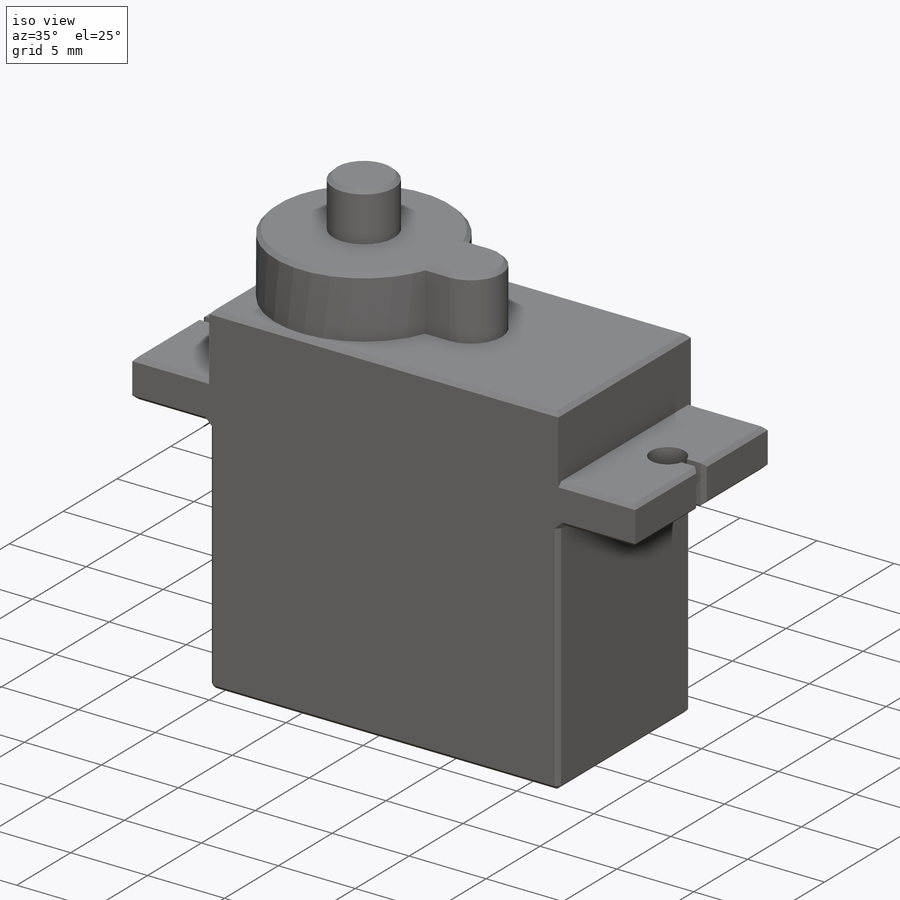
[diagram: iso view]
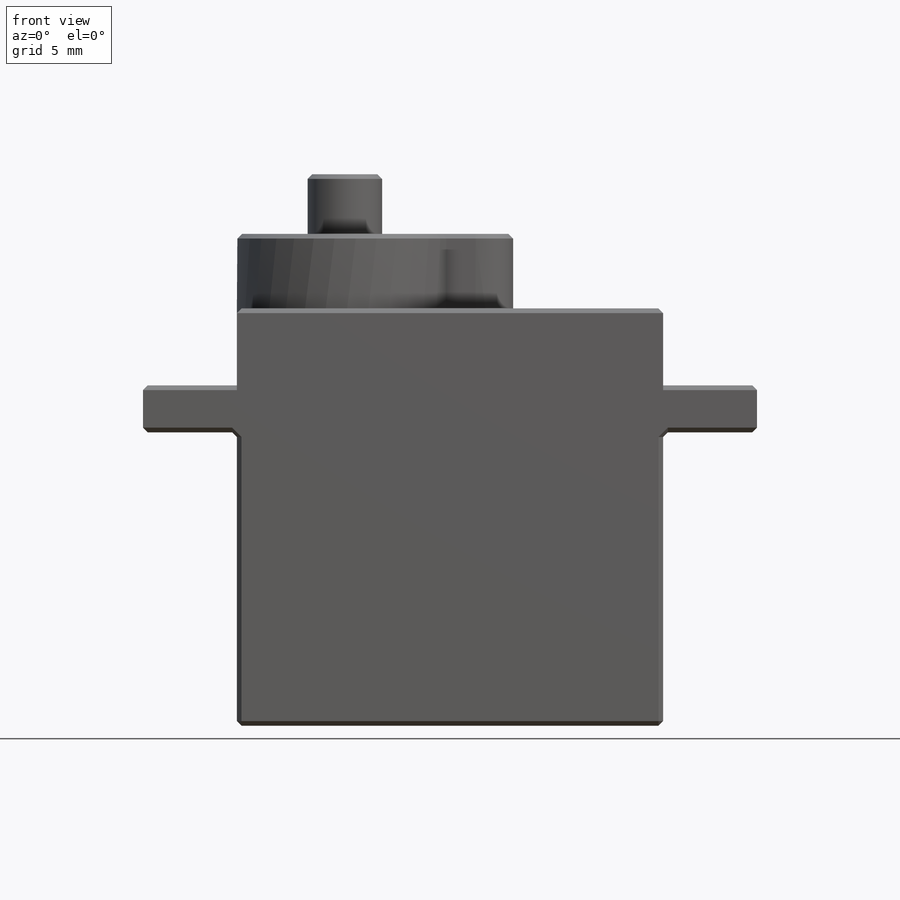
[diagram: front view]
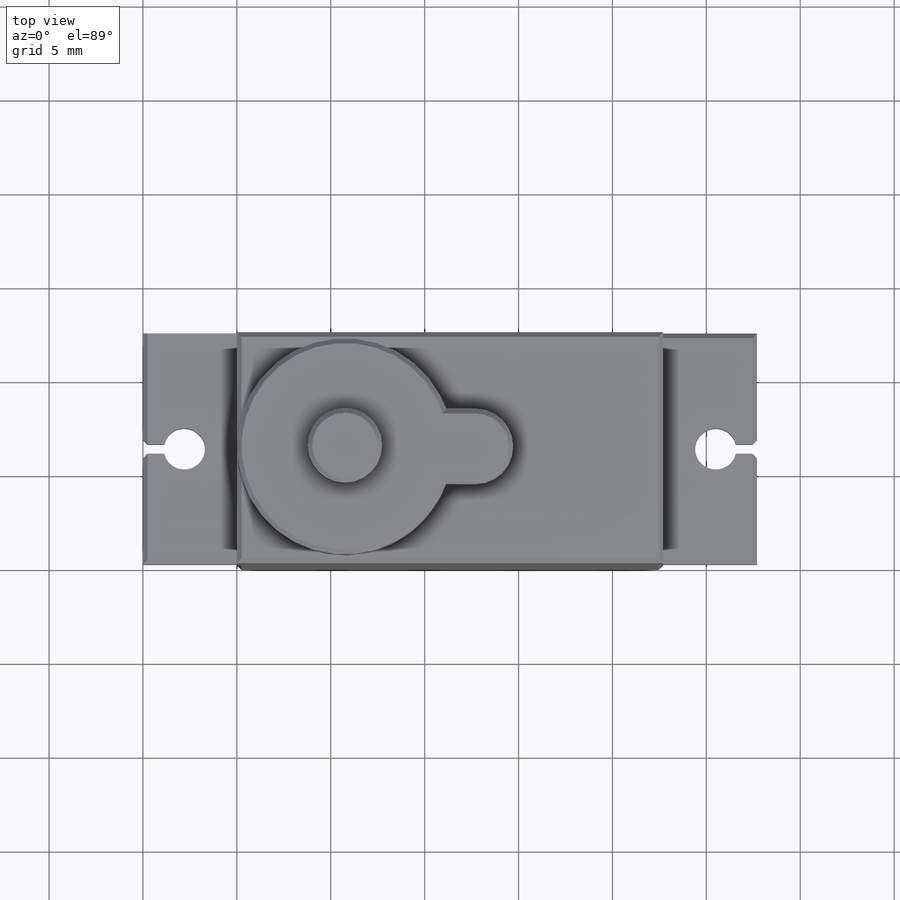
[diagram: top view]
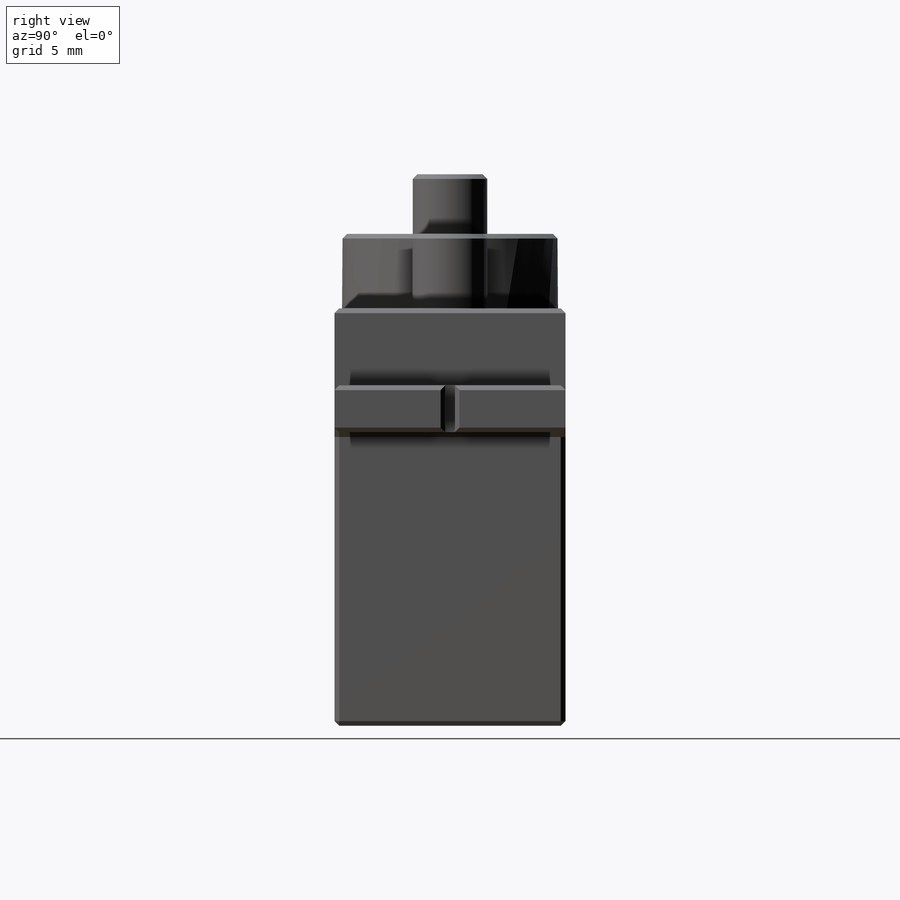
[diagram: right view]
SOLIDWORKS PART (.sldprt)
format: sldprt  version: not decoded by parser v0  size: 315,904 bytes
history: native  units: mm
features: sketch x5, extrude x4, chamfer x2, material x1, plane x1, cut_extrude x1, mirror x1 (+13 scaffold rows collapsed)
feature tree (28):
  scaffold x13  (default folders/planes/origin — collapsed)
  material  "Material <not specified>"
  sketch  "Sketch1"  dims[c1.D1=12.5mm c1.D2=22.4mm c2.D1=12.3mm c2.D2=22.7mm]
  extrude  "Boss-Extrude1"  Depth=22.225mm
  plane  "Plane1"
  sketch  "Sketch3"  dims[c1.D1=3.0mm c1.D2=12.5mm c2.D1=2.5mm c2.D2=6.6mm]
  extrude  "Boss-Extrude2"  Depth=5mm
  sketch  "Sketch4"  dims[D1=2.2mm D2=0.25mm D3=0.25mm D4=2.2mm]
  cut_extrude  "Cut-Extrude1"  [1 undecoded]
  mirror  "Mirror1"
  sketch  "Sketch5"  dims[c1.D1=~8.690002mm c1.D2=11.5mm c2.D1=5.556mm c2.D3=2.0mm c2.D4=2.0mm c2.D5=3.571mm c2.D6=3.571mm c2.D7=~4.178252mm]
  extrude  "Boss-Extrude3"  Depth=3.968mm
  sketch  "Sketch6"  dims[D1=3.968mm]
  extrude  "Boss-Extrude4"  Depth=3.175mm
  chamfer  "Chamfer1"  Distance=0.25mm Angle=45deg
  chamfer  "Chamfer2"  Distance=0.25mm Angle=45deg
decode coverage: 11 of 13 modeling features carry decoded parameters
note: ~ marks probable driven/reference dimensions
note: 1 parameter value undecoded
note: suppression state not decoded; provenance and decode notes live in map.json
